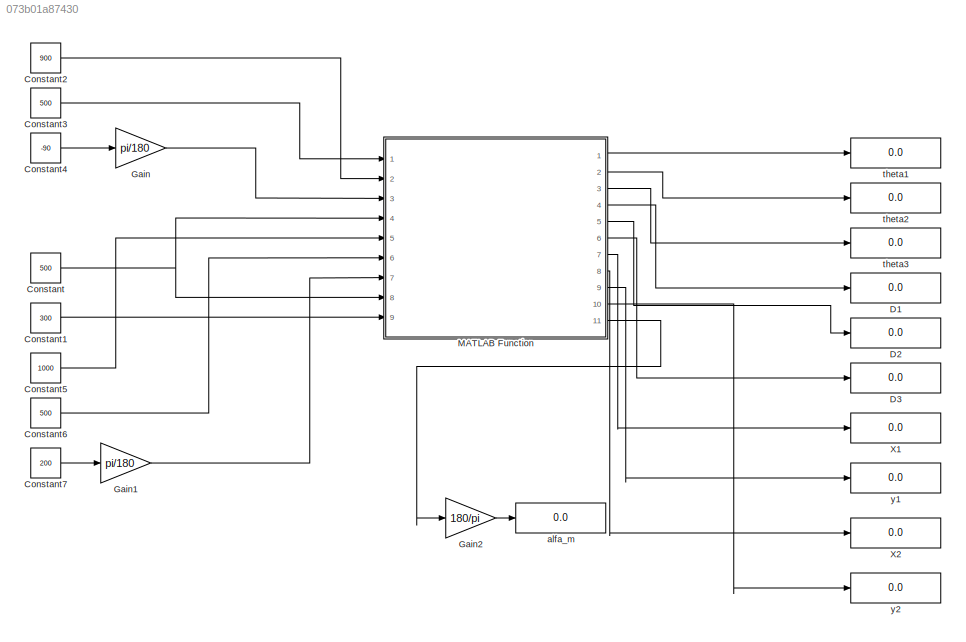
MODEL slx_073b01a87430
KIND model
CONFIG AbsTol = auto
CONFIG EnableMultiTasking = off
CONFIG FixedStep = auto
CONFIG MaxStep = auto
CONFIG MinStep = auto
CONFIG RelTol = 1e-3
CONFIG SampleTimeConstraint = Unconstrained
CONFIG Solver = VariableStepAuto
CONFIG SolverName = VariableStepAuto
CONFIG StartTime = 0.0
CONFIG StopTime = 10.0
BLOCK [Constant] Constant
  Value = 500
BLOCK [Constant] Constant1
  Value = 300
BLOCK [Constant] Constant2
  Value = 900
BLOCK [Constant] Constant3
  Value = 500
BLOCK [Constant] Constant4
  Value = -90
BLOCK [Constant] Constant5
  Value = 1000
BLOCK [Constant] Constant6
  Value = 500
BLOCK [Constant] Constant7
  Value = 200
BLOCK [Display] D1
  Decimation = 1
  Ports = [1]
BLOCK [Display] D2
  Decimation = 1
  Ports = [1]
BLOCK [Display] D3
  Decimation = 1
  Ports = [1]
BLOCK [Gain] Gain
  Gain = pi/180
  OutDataTypeStr = Inherit: Inherit via internal rule
  ParamDataTypeStr = Inherit: Inherit via internal rule
  SaturateOnIntegerOverflow = off
BLOCK [Gain] Gain1
  Gain = pi/180
  OutDataTypeStr = Inherit: Inherit via internal rule
  ParamDataTypeStr = Inherit: Inherit via internal rule
  SaturateOnIntegerOverflow = off
BLOCK [Gain] Gain2
  Gain = 180/pi
  OutDataTypeStr = Inherit: Inherit via internal rule
  ParamDataTypeStr = Inherit: Inherit via internal rule
  SaturateOnIntegerOverflow = off
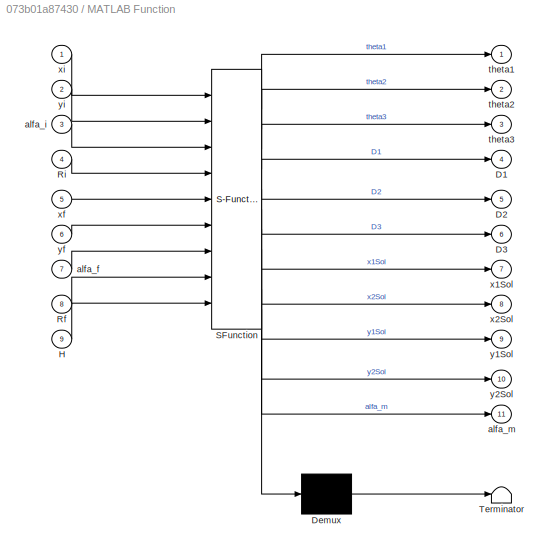
BLOCK [SubSystem] MATLAB Function
  ErrorFcn = Stateflow.Translate.translate
  PermitHierarchicalResolution = ExplicitOnly
  Ports = [9, 11]
  RequestExecContextInheritance = off
  SFBlockType = MATLAB Function
  TreatAsAtomicUnit = on
BLOCK [Demux] MATLAB Function/ Demux 
  Outputs = 1
  Ports = [1, 1]
BLOCK [S-Function] MATLAB Function/ SFunction 
  EnableBusSupport = on
  FunctionName = sf_sfun
  PortCounts = [9 12]
  Ports = [9, 12]
  SFcnIsStateOwnerBlock = off
  SFunctionDeploymentMode = off
  Tag = Stateflow S-Function inverse_model 2
BLOCK [Terminator] MATLAB Function/ Terminator 
BLOCK [Outport] MATLAB Function/D1
  IconDisplay = Port number
  Port = 4
BLOCK [Outport] MATLAB Function/D2
  IconDisplay = Port number
  Port = 5
BLOCK [Outport] MATLAB Function/D3
  IconDisplay = Port number
  Port = 6
BLOCK [Inport] MATLAB Function/H
  IconDisplay = Port number
  Port = 9
BLOCK [Inport] MATLAB Function/Rf
  IconDisplay = Port number
  Port = 8
BLOCK [Inport] MATLAB Function/Ri
  IconDisplay = Port number
  Port = 4
BLOCK [Inport] MATLAB Function/alfa_f
  IconDisplay = Port number
  Port = 7
BLOCK [Inport] MATLAB Function/alfa_i
  IconDisplay = Port number
  Port = 3
BLOCK [Outport] MATLAB Function/alfa_m
  IconDisplay = Port number
  Port = 11
BLOCK [Outport] MATLAB Function/theta1
  IconDisplay = Port number
BLOCK [Outport] MATLAB Function/theta2
  IconDisplay = Port number
  Port = 2
BLOCK [Outport] MATLAB Function/theta3
  IconDisplay = Port number
  Port = 3
BLOCK [Outport] MATLAB Function/x1Sol
  IconDisplay = Port number
  Port = 7
BLOCK [Outport] MATLAB Function/x2Sol
  IconDisplay = Port number
  Port = 8
BLOCK [Inport] MATLAB Function/xf
  IconDisplay = Port number
  Port = 5
BLOCK [Inport] MATLAB Function/xi
  IconDisplay = Port number
BLOCK [Outport] MATLAB Function/y1Sol
  IconDisplay = Port number
  Port = 9
BLOCK [Outport] MATLAB Function/y2Sol
  IconDisplay = Port number
  Port = 10
BLOCK [Inport] MATLAB Function/yf
  IconDisplay = Port number
  Port = 6
BLOCK [Inport] MATLAB Function/yi
  IconDisplay = Port number
  Port = 2
BLOCK [Display] X1
  Decimation = 4
  Ports = [1]
BLOCK [Display] X2
  Decimation = 1
  Ports = [1]
BLOCK [Display] alfa_m
  Decimation = 1
  Ports = [1]
BLOCK [Display] theta1
  Decimation = 1
  Ports = [1]
BLOCK [Display] theta2
  Decimation = 1
  Ports = [1]
BLOCK [Display] theta3
  Decimation = 1
  Ports = [1]
BLOCK [Display] y1
  Decimation = 4
  Ports = [1]
BLOCK [Display] y2
  Decimation = 1
  Ports = [1]
LINE Constant1:1 -> MATLAB Function:9
LINE Constant2:1 -> MATLAB Function:2
LINE Constant3:1 -> MATLAB Function:1
LINE Constant4:1 -> Gain:1
LINE Constant5:1 -> MATLAB Function:5
LINE Constant6:1 -> MATLAB Function:6
LINE Constant7:1 -> Gain1:1
NET Constant:1 -> MATLAB Function:4, MATLAB Function:8
LINE Gain1:1 -> MATLAB Function:7
LINE Gain2:1 -> alfa_m:1
LINE Gain:1 -> MATLAB Function:3
LINE MATLAB Function:1 -> theta1:1
LINE MATLAB Function:10 -> y2:1
LINE MATLAB Function:11 -> Gain2:1
LINE MATLAB Function:2 -> theta2:1
LINE MATLAB Function:3 -> theta3:1
LINE MATLAB Function:4 -> D1:1
LINE MATLAB Function:5 -> D2:1
LINE MATLAB Function:6 -> D3:1
LINE MATLAB Function:7 -> X1:1
LINE MATLAB Function:8 -> X2:1
LINE MATLAB Function:9 -> y1:1
note: NET lines group one-source signal fan-out (src -> all destinations, sorted); 1:1 wires keep LINE
CHART MATLAB Function states=1 transitions=1
  STATE_LABEL 'eML_blk_kernel()'
  STATE_LABEL 'SCRIPT:\nfunction [theta1,theta2,theta3,D1,D2,D3,x1Sol,x2Sol,y1Sol,y2Sol,alfa_m] = fcn(xi,yi,alfa_i,Ri,xf,yf,alfa_f,Rf,H)\n\n\n%H=200;\n%Ri=500;Rf=500;\n%xi=5000; yi=5000; alfa_i=90*pi/180;\n%xf=0; yf=0; alfa_f=0*pi/180;\n\n\nxc1=xf+Rf*sin(alfa_f);\nyc1=yf-Rf*cos(alfa_f);\nxc2=xi+Ri*sin(alfa_i);\nyc2=yi-Ri*cos(alfa_i);\n\n%v1=[(x1-xc1),(y1-yc1),0];\n%v2=[(x1-x2),(y1-y2)],0;\n%v3=[(x2-xc2),(y2-yc2),0];\n\n%syms x1 y1...<+3608ch>'
